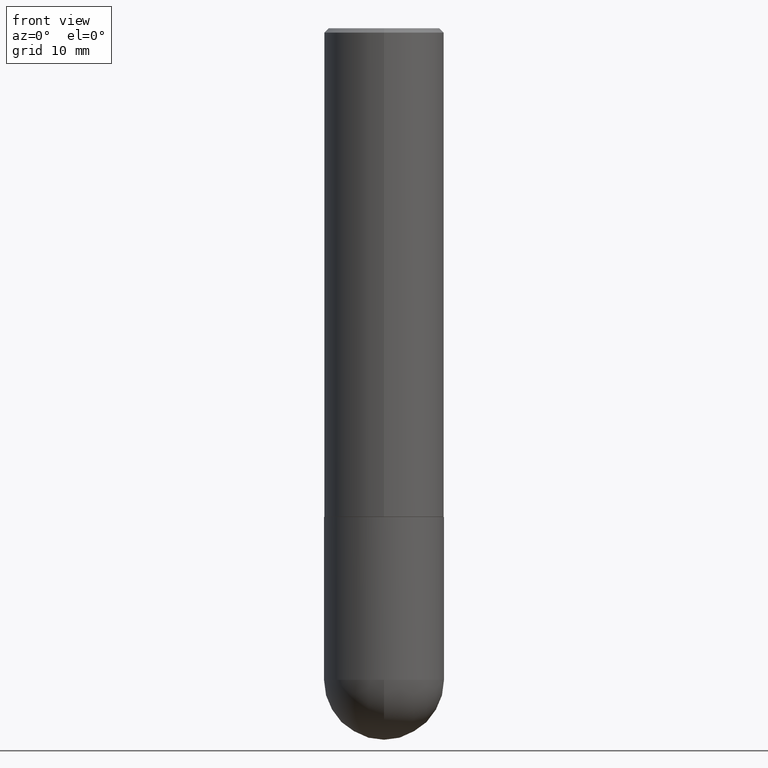
[diagram: clean part render]
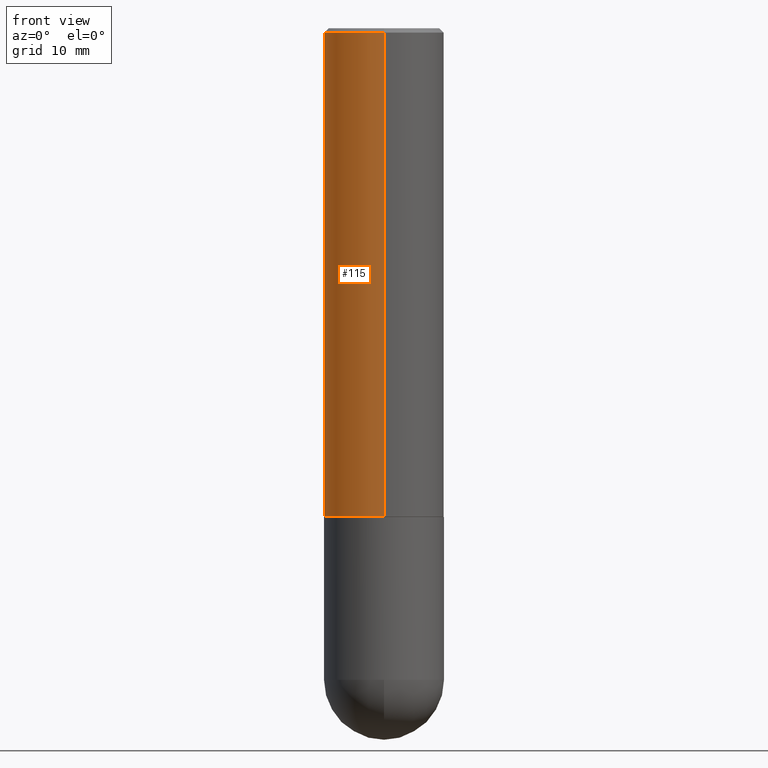
[diagram: same view with one face highlighted and labeled with its STEP entity id]
A machine part, front view. The second image highlights one B-rep face of the part: STEP entity #115.
In plain terms, the highlighted cylindrical surface (partial cylindrical patch) has radius 7.0002 mm, axis along (-0, 0, 1).
Its self-contained STEP definition (entity closure, byte-faithful):
#13 = VECTOR ( 'NONE', #105, 39.37007874015748143 ) ;
#31 = EDGE_CURVE ( 'NONE', #187, #170, #89, .T. ) ;
#34 = FACE_OUTER_BOUND ( 'NONE', #52, .T. ) ;
#37 = DIRECTION ( 'NONE',  ( -2.444322153688896645E-29, 3.493123410481168498E-15, 1.000000000000000000 ) ) ;
#52 = EDGE_LOOP ( 'NONE', ( #162, #277, #102, #183 ) ) ;
#60 = DIRECTION ( 'NONE',  ( -6.982962677686265922E-15, -1.000000000000000000, 3.493123410481168498E-15 ) ) ;
#65 = CARTESIAN_POINT ( 'NONE',  ( 1.958255779754836984E-15, 0.2756000000000001782, -9.627048119286106573E-16 ) ) ;
#68 = DIRECTION ( 'NONE',  ( -6.982962677686265922E-15, -1.000000000000000000, 3.964946289788476952E-15 ) ) ;
#81 = EDGE_CURVE ( 'NONE', #187, #149, #132, .T. ) ;
#89 = CIRCLE ( 'NONE', #167, 0.2756000000000002892 ) ;
#96 = CARTESIAN_POINT ( 'NONE',  ( -1.924504513970282100E-15, -0.2756000000000081163, -2.243099999999999206 ) ) ;
#102 = ORIENTED_EDGE ( 'NONE', *, *, #246, .T. ) ;
#103 = DIRECTION ( 'NONE',  ( -2.444322153688896365E-29, 3.493123410481168498E-15, 1.000000000000000000 ) ) ;
#105 = DIRECTION ( 'NONE',  ( -2.444322153688896645E-29, 3.493123410481168498E-15, 1.000000000000000000 ) ) ;
#115 = ADVANCED_FACE ( 'NONE', ( #34 ), #387, .T. ) ;
#132 = LINE ( 'NONE', #65, #171 ) ;
#139 = CARTESIAN_POINT ( 'NONE',  ( -1.924504513970336137E-15, -0.2756000000000001782, 9.627048119286106573E-16 ) ) ;
#149 = VERTEX_POINT ( 'NONE', #259 ) ;
#159 = CARTESIAN_POINT ( 'NONE',  ( 0.000000000000000000, 0.000000000000000000, 0.000000000000000000 ) ) ;
#161 = DIRECTION ( 'NONE',  ( -2.444322153688896365E-29, 3.493123410481168498E-15, 1.000000000000000000 ) ) ;
#162 = ORIENTED_EDGE ( 'NONE', *, *, #81, .F. ) ;
#167 = AXIS2_PLACEMENT_3D ( 'NONE', #285, #215, #68 ) ;
#170 = VERTEX_POINT ( 'NONE', #96 ) ;
#171 = VECTOR ( 'NONE', #37, 39.37007874015748143 ) ;
#180 = AXIS2_PLACEMENT_3D ( 'NONE', #396, #161, #293 ) ;
#183 = ORIENTED_EDGE ( 'NONE', *, *, #278, .F. ) ;
#187 = VERTEX_POINT ( 'NONE', #192 ) ;
#192 = CARTESIAN_POINT ( 'NONE',  ( 1.958255779754864988E-15, 0.2755999999999924621, -2.243100000000001426 ) ) ;
#200 = LINE ( 'NONE', #139, #13 ) ;
#215 = DIRECTION ( 'NONE',  ( -2.444322153688896365E-29, 3.493123410481168498E-15, 1.000000000000000000 ) ) ;
#246 = EDGE_CURVE ( 'NONE', #170, #338, #200, .T. ) ;
#259 = CARTESIAN_POINT ( 'NONE',  ( 1.924504513970335743E-15, 0.2755999999999999561, -0.02000000000000102737 ) ) ;
#277 = ORIENTED_EDGE ( 'NONE', *, *, #31, .T. ) ;
#278 = EDGE_CURVE ( 'NONE', #149, #338, #282, .T. ) ;
#282 = CIRCLE ( 'NONE', #180, 0.2756000000000000116 ) ;
#285 = CARTESIAN_POINT ( 'NONE',  ( 5.482859022939564646E-29, -7.835425122050310720E-15, -2.243100000000000094 ) ) ;
#289 = AXIS2_PLACEMENT_3D ( 'NONE', #159, #103, #60 ) ;
#293 = DIRECTION ( 'NONE',  ( -6.982962677686265922E-15, -1.000000000000000000, 3.500304146453892878E-15 ) ) ;
#328 = CARTESIAN_POINT ( 'NONE',  ( -1.890753248185833713E-15, -0.2756000000000000671, -0.01999999999999909836 ) ) ;
#338 = VERTEX_POINT ( 'NONE', #328 ) ;
#387 = CYLINDRICAL_SURFACE ( 'NONE', #289, 0.2756000000000001782 ) ;
#396 = CARTESIAN_POINT ( 'NONE',  ( 4.888644307377808495E-31, -6.986246820962358886E-17, -0.02000000000000006287 ) ) ;